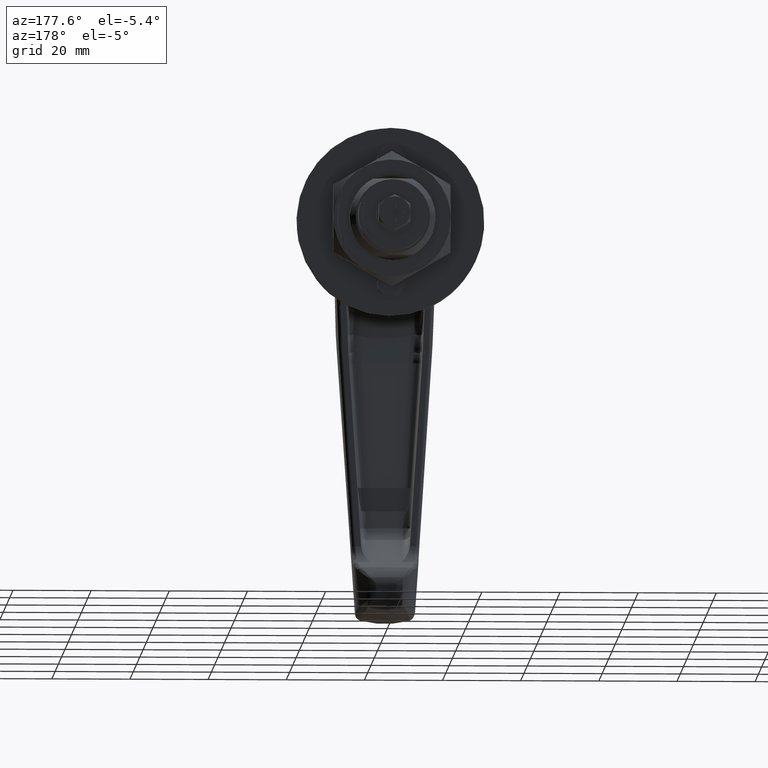
[diagram: clean part render]
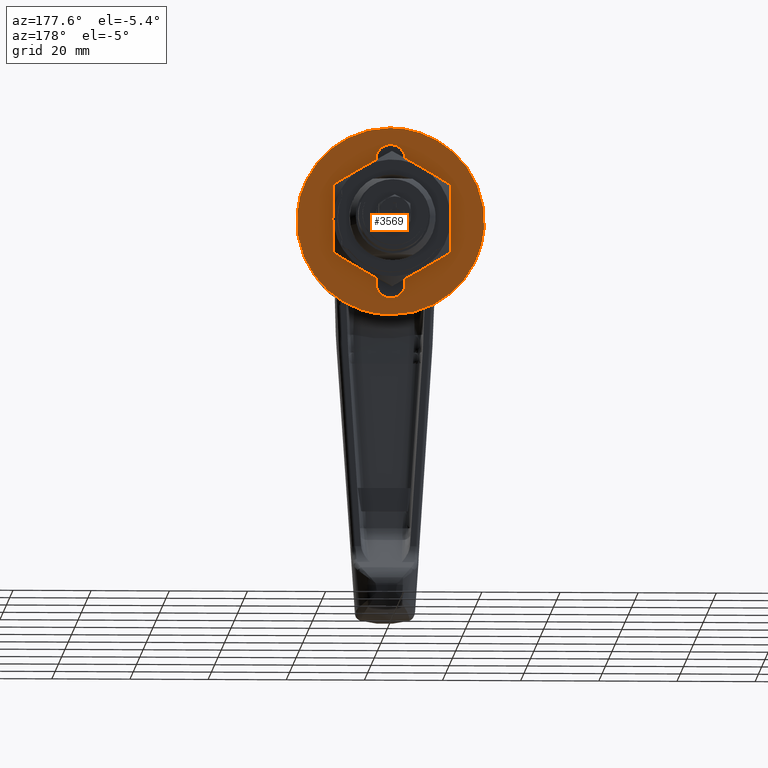
[diagram: same view with one face highlighted and labeled with its STEP entity id]
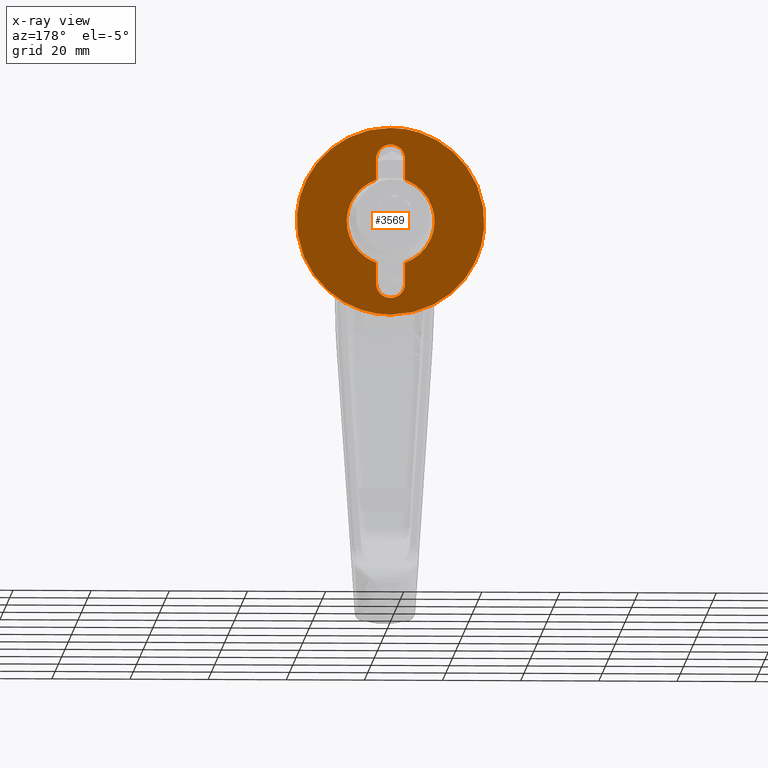
[diagram: x-ray of the same camera — body ghosted, the highlighted face saturated]
A machine part, auxiliary view. The second image highlights one B-rep face of the part: STEP entity #3569.
The next image is the same camera in x-ray: the body ghosted, the highlighted face saturated — about 0% of this face is hidden behind the body in this view.
In plain terms, the highlighted face is a freeform B-spline surface patch.
Its self-contained STEP definition (entity closure, byte-faithful):
#3203=CARTESIAN_POINT('',(-2.255141E-017,-23.926017600802730,1.882994096402696));
#3204=VERTEX_POINT('',#3203);
#3210=CARTESIAN_POINT('',(0.0,0.000000313432878,24.0));
#3211=VERTEX_POINT('',#3210);
#3212=CARTESIAN_POINT('',(0.0,0.000000313432878,24.0));
#3213=CARTESIAN_POINT('',(0.0,-22.185393996174241,23.999999999999996));
#3214=CARTESIAN_POINT('',(-2.255141E-017,-23.926017600802730,1.882994096402695));
#3222=(BOUNDED_CURVE()B_SPLINE_CURVE(2,(#3212,#3213,#3214),.UNSPECIFIED.,.F.,.U.)B_SPLINE_CURVE_WITH_KNOTS((3,3),(0.0,0.236331474027944),.UNSPECIFIED.)CURVE()GEOMETRIC_REPRESENTATION_ITEM()RATIONAL_B_SPLINE_CURVE((1.0,0.723120455460111,0.969723718034603))REPRESENTATION_ITEM(''));
#3223=EDGE_CURVE('',#3211,#3204,#3222,.T.);
#3225=CARTESIAN_POINT('',(-2.255141E-017,23.926018227668489,-1.882994096402701));
#3226=VERTEX_POINT('',#3225);
#3227=CARTESIAN_POINT('',(-2.255141E-017,23.926018227668486,-1.882994096402701));
#3228=CARTESIAN_POINT('',(0.0,24.000000313432885,-0.942950411497736));
#3229=CARTESIAN_POINT('',(0.0,24.000000313432881,1.919159E-023));
#3230=CARTESIAN_POINT('',(0.0,24.000000313432871,23.999999999999996));
#3231=CARTESIAN_POINT('',(0.0,0.000000313432878,24.0));
#3239=(BOUNDED_CURVE()B_SPLINE_CURVE(2,(#3227,#3228,#3229,#3230,#3231),.UNSPECIFIED.,.F.,.U.)B_SPLINE_CURVE_WITH_KNOTS((3,2,3),(0.736331474027944,0.750000000000000,1.0),.UNSPECIFIED.)CURVE()GEOMETRIC_REPRESENTATION_ITEM()RATIONAL_B_SPLINE_CURVE((0.969723718034603,0.983986325726437,1.0,0.707106781186548,1.0))REPRESENTATION_ITEM(''));
#3240=EDGE_CURVE('',#3226,#3211,#3239,.T.);
#3316=CARTESIAN_POINT('',(0.0,0.000000313432878,-24.0));
#3317=VERTEX_POINT('',#3316);
#3318=CARTESIAN_POINT('',(0.0,0.000000313432878,-24.0));
#3319=CARTESIAN_POINT('',(0.0,22.185394623039983,-23.999999999999993));
#3320=CARTESIAN_POINT('',(-2.255141E-017,23.926018227668486,-1.882994096402701));
#3328=(BOUNDED_CURVE()B_SPLINE_CURVE(2,(#3318,#3319,#3320),.UNSPECIFIED.,.F.,.U.)B_SPLINE_CURVE_WITH_KNOTS((3,3),(0.500000000000000,0.736331474027944),.UNSPECIFIED.)CURVE()GEOMETRIC_REPRESENTATION_ITEM()RATIONAL_B_SPLINE_CURVE((1.0,0.723120455460111,0.969723718034603))REPRESENTATION_ITEM(''));
#3329=EDGE_CURVE('',#3317,#3226,#3328,.T.);
#3331=CARTESIAN_POINT('',(-2.255141E-017,-23.926017600802730,1.882994096402695));
#3332=CARTESIAN_POINT('',(0.0,-23.999999686567119,0.942950411497734));
#3333=CARTESIAN_POINT('',(0.0,-23.999999686567119,1.919159E-023));
#3334=CARTESIAN_POINT('',(0.0,-23.999999686567126,-23.999999999999996));
#3335=CARTESIAN_POINT('',(0.0,0.000000313432878,-24.0));
#3343=(BOUNDED_CURVE()B_SPLINE_CURVE(2,(#3331,#3332,#3333,#3334,#3335),.UNSPECIFIED.,.F.,.U.)B_SPLINE_CURVE_WITH_KNOTS((3,2,3),(0.236331474027944,0.250000000000000,0.500000000000000),.UNSPECIFIED.)CURVE()GEOMETRIC_REPRESENTATION_ITEM()RATIONAL_B_SPLINE_CURVE((0.969723718034603,0.983986325726437,1.0,0.707106781186548,1.0))REPRESENTATION_ITEM(''));
#3344=EDGE_CURVE('',#3204,#3317,#3343,.T.);
#3460=CARTESIAN_POINT('',(0.0,-26.390274202600960,26.397599906966690));
#3461=CARTESIAN_POINT('',(0.0,26.390275687773599,26.397599906966690));
#3462=CARTESIAN_POINT('',(0.0,-26.390274202600960,-26.397601194427011));
#3463=CARTESIAN_POINT('',(0.0,26.390275687773599,-26.397601194427011));
#3464=B_SPLINE_SURFACE_WITH_KNOTS('',1,1,((#3460,#3462),(#3461,#3463)),.UNSPECIFIED.,.F.,.F.,.U.,(2,2),(2,2),(0.0,52.780549890374573),(0.0,52.795201101393701),.UNSPECIFIED.);
#3465=ORIENTED_EDGE('',*,*,#3223,.T.);
#3466=ORIENTED_EDGE('',*,*,#3344,.T.);
#3467=ORIENTED_EDGE('',*,*,#3329,.T.);
#3468=ORIENTED_EDGE('',*,*,#3240,.T.);
#3469=EDGE_LOOP('',(#3465,#3466,#3467,#3468));
#3470=FACE_OUTER_BOUND('',#3469,.T.);
#3471=CARTESIAN_POINT('',(0.0,-3.700000000000000,10.624146915427920));
#3472=VERTEX_POINT('',#3471);
#3473=CARTESIAN_POINT('',(0.0,-3.700000000000000,-10.624146915427920));
#3474=VERTEX_POINT('',#3473);
#3475=CARTESIAN_POINT('',(0.0,-3.700000000000004,10.624146915427920));
#3476=CARTESIAN_POINT('',(0.0,-11.249999686567117,7.994759216905932));
#3477=CARTESIAN_POINT('',(0.0,-11.249999686567120,1.919159E-023));
#3478=CARTESIAN_POINT('',(0.0,-11.249999686567117,-7.994759216905935));
#3479=CARTESIAN_POINT('',(0.0,-3.700000000000001,-10.624146915427920));
#3487=(BOUNDED_CURVE()B_SPLINE_CURVE(2,(#3475,#3476,#3477,#3478,#3479),.UNSPECIFIED.,.F.,.U.)B_SPLINE_CURVE_WITH_KNOTS((3,2,3),(0.0,0.500000000000000,1.0),.UNSPECIFIED.)CURVE()GEOMETRIC_REPRESENTATION_ITEM()RATIONAL_B_SPLINE_CURVE((1.0,0.815134625920648,1.0,0.815134625920648,1.0))REPRESENTATION_ITEM(''));
#3488=EDGE_CURVE('',#3472,#3474,#3487,.T.);
#3489=ORIENTED_EDGE('',*,*,#3488,.F.);
#3490=CARTESIAN_POINT('',(0.0,-3.700000000000000,16.0));
#3491=VERTEX_POINT('',#3490);
#3492=CARTESIAN_POINT('',(0.0,-3.700000000000000,16.0));
#3493=CARTESIAN_POINT('',(0.0,-3.700000000000000,10.624146915427920));
#3494=QUASI_UNIFORM_CURVE('',1,(#3492,#3493),.UNSPECIFIED.,.F.,.U.);
#3495=EDGE_CURVE('',#3491,#3472,#3494,.T.);
#3496=ORIENTED_EDGE('',*,*,#3495,.F.);
#3497=CARTESIAN_POINT('',(0.0,3.700000000000000,16.0));
#3498=VERTEX_POINT('',#3497);
#3499=CARTESIAN_POINT('',(0.0,3.699999999999999,16.0));
#3500=CARTESIAN_POINT('',(0.0,3.699999999999999,19.700000000000006));
#3501=CARTESIAN_POINT('',(0.0,-9.619438E-016,19.699999999999999));
#3502=CARTESIAN_POINT('',(0.0,-3.700000000000001,19.700000000000006));
#3503=CARTESIAN_POINT('',(0.0,-3.700000000000001,16.0));
#3511=(BOUNDED_CURVE()B_SPLINE_CURVE(2,(#3499,#3500,#3501,#3502,#3503),.UNSPECIFIED.,.F.,.U.)B_SPLINE_CURVE_WITH_KNOTS((3,2,3),(0.0,0.500000000000000,1.0),.UNSPECIFIED.)CURVE()GEOMETRIC_REPRESENTATION_ITEM()RATIONAL_B_SPLINE_CURVE((1.0,0.707106781186548,1.0,0.707106781186548,1.0))REPRESENTATION_ITEM(''));
#3512=EDGE_CURVE('',#3498,#3491,#3511,.T.);
#3513=ORIENTED_EDGE('',*,*,#3512,.F.);
#3514=CARTESIAN_POINT('',(0.0,3.700000000000000,10.624146915427920));
#3515=VERTEX_POINT('',#3514);
#3516=CARTESIAN_POINT('',(0.0,3.700000000000000,10.624146915427920));
#3517=CARTESIAN_POINT('',(0.0,3.700000000000000,16.0));
#3518=QUASI_UNIFORM_CURVE('',1,(#3516,#3517),.UNSPECIFIED.,.F.,.U.);
#3519=EDGE_CURVE('',#3515,#3498,#3518,.T.);
#3520=ORIENTED_EDGE('',*,*,#3519,.F.);
#3521=CARTESIAN_POINT('',(0.0,3.700000000000000,-10.624146915427920));
#3522=VERTEX_POINT('',#3521);
#3523=CARTESIAN_POINT('',(0.0,3.699999999999998,-10.624146915427920));
#3524=CARTESIAN_POINT('',(0.0,11.249999686567120,-7.994759216905933));
#3525=CARTESIAN_POINT('',(0.0,11.249999686567120,-1.919159E-023));
#3526=CARTESIAN_POINT('',(0.0,11.249999686567120,7.994759216905930));
#3527=CARTESIAN_POINT('',(0.0,3.700000000000007,10.624146915427920));
#3535=(BOUNDED_CURVE()B_SPLINE_CURVE(2,(#3523,#3524,#3525,#3526,#3527),.UNSPECIFIED.,.F.,.U.)B_SPLINE_CURVE_WITH_KNOTS((3,2,3),(0.0,0.500000000000000,1.0),.UNSPECIFIED.)CURVE()GEOMETRIC_REPRESENTATION_ITEM()RATIONAL_B_SPLINE_CURVE((1.0,0.815134625920648,1.0,0.815134625920648,1.0))REPRESENTATION_ITEM(''));
#3536=EDGE_CURVE('',#3522,#3515,#3535,.T.);
#3537=ORIENTED_EDGE('',*,*,#3536,.F.);
#3538=CARTESIAN_POINT('',(0.0,3.700000000000000,-16.0));
#3539=VERTEX_POINT('',#3538);
#3540=CARTESIAN_POINT('',(0.0,3.700000000000000,-16.0));
#3541=CARTESIAN_POINT('',(0.0,3.700000000000000,-10.624146915427920));
#3542=QUASI_UNIFORM_CURVE('',1,(#3540,#3541),.UNSPECIFIED.,.F.,.U.);
#3543=EDGE_CURVE('',#3539,#3522,#3542,.T.);
#3544=ORIENTED_EDGE('',*,*,#3543,.F.);
#3545=CARTESIAN_POINT('',(0.0,-3.700000000000000,-16.0));
#3546=VERTEX_POINT('',#3545);
#3547=CARTESIAN_POINT('',(0.0,-3.699999999999999,-16.0));
#3548=CARTESIAN_POINT('',(0.0,-3.699999999999999,-19.700000000000006));
#3549=CARTESIAN_POINT('',(0.0,9.619438E-016,-19.699999999999999));
#3550=CARTESIAN_POINT('',(0.0,3.700000000000001,-19.700000000000006));
#3551=CARTESIAN_POINT('',(0.0,3.700000000000001,-16.0));
#3559=(BOUNDED_CURVE()B_SPLINE_CURVE(2,(#3547,#3548,#3549,#3550,#3551),.UNSPECIFIED.,.F.,.U.)B_SPLINE_CURVE_WITH_KNOTS((3,2,3),(0.0,0.500000000000000,1.0),.UNSPECIFIED.)CURVE()GEOMETRIC_REPRESENTATION_ITEM()RATIONAL_B_SPLINE_CURVE((1.0,0.707106781186548,1.0,0.707106781186548,1.0))REPRESENTATION_ITEM(''));
#3560=EDGE_CURVE('',#3546,#3539,#3559,.T.);
#3561=ORIENTED_EDGE('',*,*,#3560,.F.);
#3562=CARTESIAN_POINT('',(0.0,-3.700000000000000,-10.624146915427920));
#3563=CARTESIAN_POINT('',(0.0,-3.700000000000000,-16.0));
#3564=QUASI_UNIFORM_CURVE('',1,(#3562,#3563),.UNSPECIFIED.,.F.,.U.);
#3565=EDGE_CURVE('',#3474,#3546,#3564,.T.);
#3566=ORIENTED_EDGE('',*,*,#3565,.F.);
#3567=EDGE_LOOP('',(#3489,#3496,#3513,#3520,#3537,#3544,#3561,#3566));
#3568=FACE_BOUND('',#3567,.T.);
#3569=ADVANCED_FACE('',(#3470,#3568),#3464,.F.);